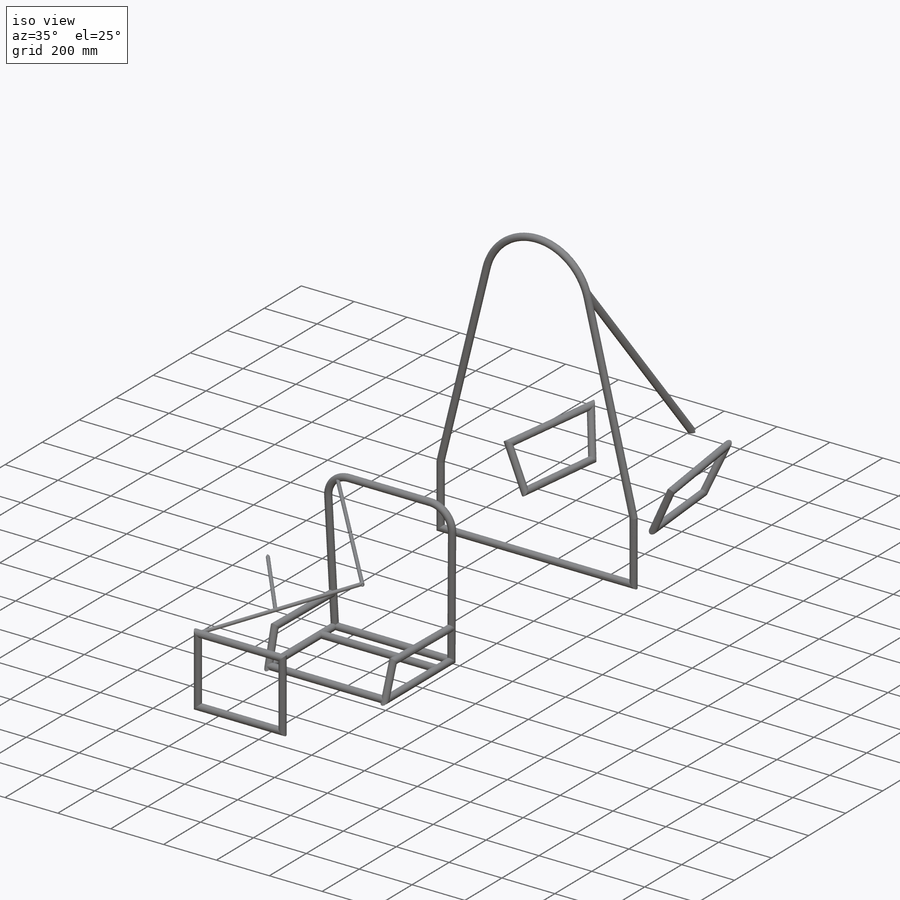
[diagram: iso view]
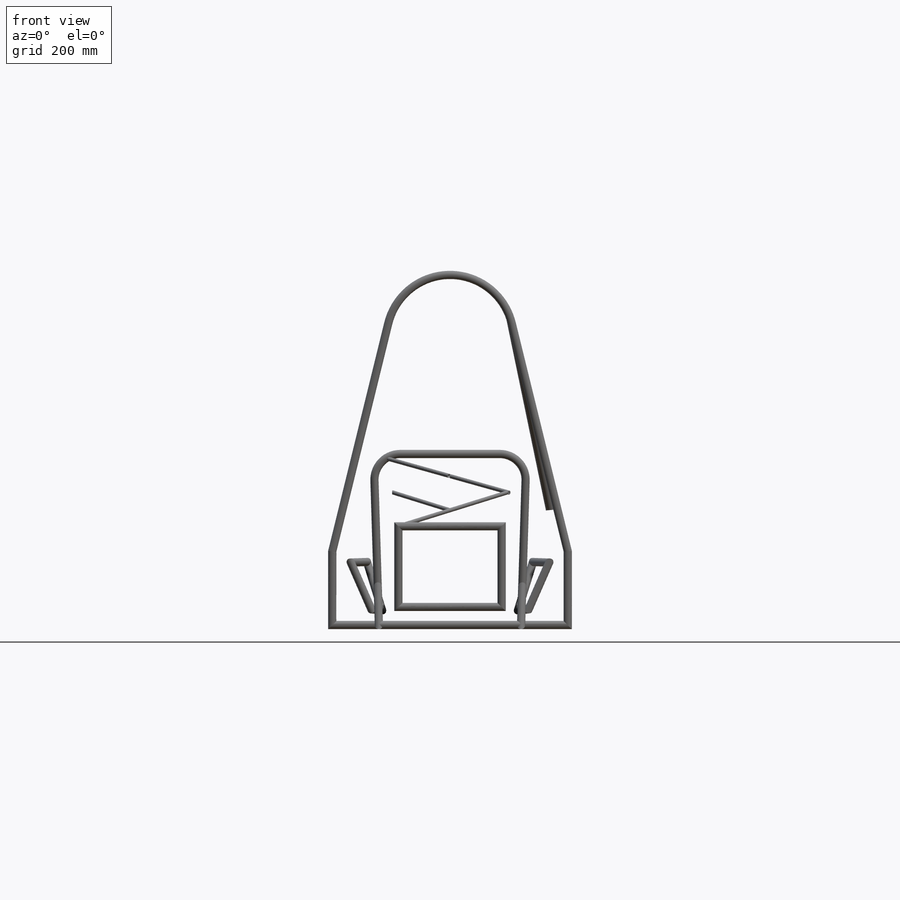
[diagram: front view]
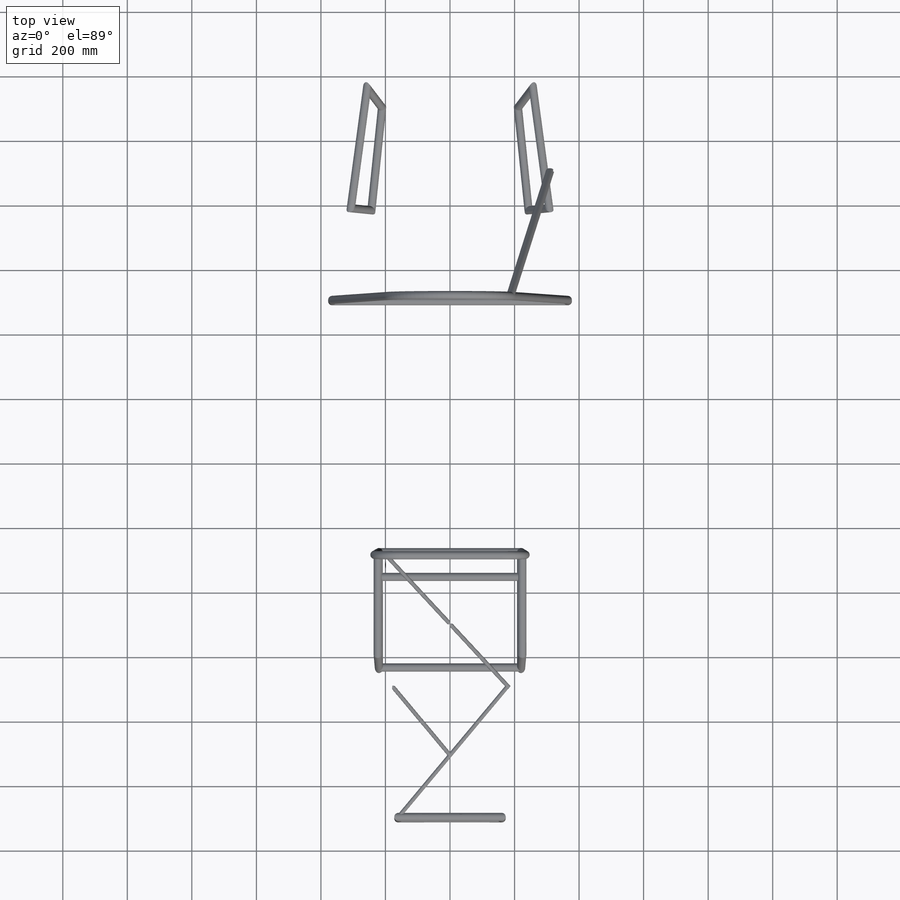
[diagram: top view]
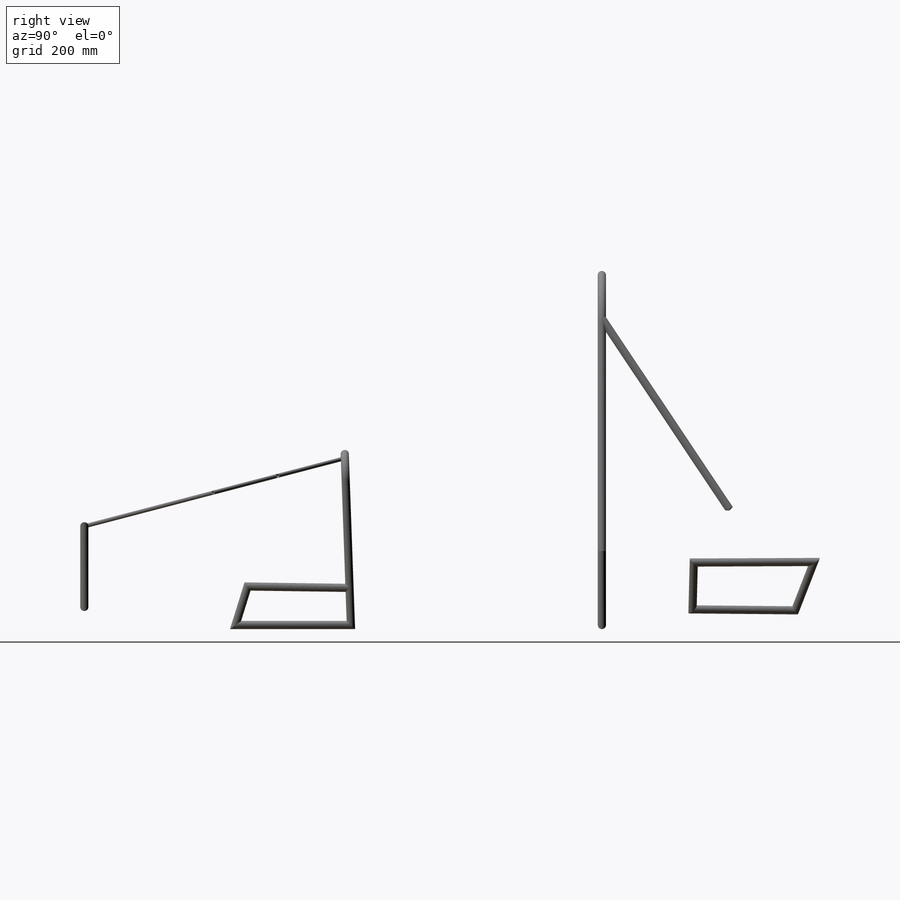
[diagram: right view]
SOLIDWORKS PART (.sldprt)
format: sldprt  version: not decoded by parser v0  size: 4,944,896 bytes
history: native  units: mm
features: sketch x56, plane x50, extrude x6, delete_body x2, material x1 + 115 further entries (+15 scaffold rows collapsed; 4 parser-record rows omitted)
feature tree (249):
  scaffold x15  (default folders/planes/origin — collapsed)
  material  "AISI 1020 Steel, Cold Rolled"
  "Cut-List-Item2"
  "Cut-List-Item3"
  "Cut-List-Item4"
  "Cut-List-Item5"
  "Cut-List-Item6"
  "Cut-List-Item7"
  "Cut-List-Item8"
  "Cut-List-Item9"
  "Cut-List-Item10"
  "Cut-List-Item11"
  "Cut-List-Item12"
  "Cut-List-Item13"
  "Cut-List-Item14"
  "Cut-List-Item15"
  "Cut-List-Item16"
  "Cut-List-Item17"
  "Cut-List-Item18"
  "Cut-List-Item27"
  "Cut-List-Item28"
  "Cut-List-Item29"
  "Cut-List-Item30"
  "Cut-List-Item32"
  "Cut-List-Item33"
  "Cut-List-Item34"
  "Cut-List-Item44"
  "Cut-List-Item45"
  "Cut-List-Item46"
  "Cut-List-Item47"
  "Cut-List-Item49"
  "Cut-List-Item50"
  "Cut-List-Item51"
  "Cut-List-Item52"
  "Cut-List-Item53"
  "Cut-List-Item54"
  "Cut-List-Item55"
  "Cut-List-Item56"
  "Cut-List-Item57"
  "Cut-List-Item61"
  "Cut-List-Item62"
  "Cut-List-Item63"
  "Cut-List-Item64"
  "Cut-List-Item65"
  "Cut-List-Item66"
  "Cut-List-Item67"
  "Cut-List-Item76"
  "Cut-List-Item77"
  "Cut-List-Item78"
  "Cut-List-Item79"
  "Cut-List-Item82"
  "Cut-List-Item83"
  "Cut-List-Item84"
  "Cut-List-Item85"
  "Cut-List-Item86"
  "Cut-List-Item87"
  "Cut-List-Item88"
  "Cut-List-Item93"
  "Cut-List-Item94"
  "Cut-List-Item95"
  "Cut-List-Item96"
  "Cut-List-Item97"
  "Cut-List-Item98"
  "Cut-List-Item99"
  "Cut-List-Item100"
  "Cut-List-Item101"
  "Cut-List-Item102"
  "Cut-List-Item103"
  "Cut-List-Item104"
  "Cut-List-Item105"
  "Cut-List-Item106"
  "Cut-List-Item107"
  "Cut-List-Item108"
  "Cut-List-Item109"
  "Cut-List-Item110"
  "Cut-List-Item111"
  "Cut-List-Item112"
  "Cut-List-Item113"
  "Cut-List-Item115"
  "Cut-List-Item116"
  "Cut-List-Item117"
  "Cut-List-Item118"
  "Cut-List-Item119"
  "Cut-List-Item120"
  "Cut-List-Item121"
  "Cut-List-Item122"
  "Cut-List-Item123"
  "Cut-List-Item124"
  "Cut-List-Item125"
  "Cut-List-Item126"
  "Cut-List-Item127"
  "Cut-List-Item128"
  "Cut-List-Item129"
  "Cut-List-Item130"
  "Cut-List-Item131"
  "Cut-List-Item132"
  "Cut-List-Item133"
  "Cut-List-Item134"
  "Cut-List-Item135"
  "Cut-List-Item136"
  "Cut-List-Item137"
  "Cut-List-Item138"
  "Cut-List-Item139"
  "Cut-List-Item140"
  "Cut-List-Item141"
  "Cut-List-Item142"
  "Cut-List-Item143"
  "Cut-List-Item144"
  "Cut-List-Item145"
  "Cut-List-Item146"
  "Cut-List-Item147"
  "Cut-List-Item148"
  "Cut-List-Item149"
  "Cut-List-Item150"
  "Cut-List-Item151"
  "Cut-List-Item152"
  "Cut-List-Item153"
  parser-record x4  (decoder bookkeeping rows leaked as tree rows — omitted from the tree; the rows remain in map.json)
  sketch  "3DSketch1"  dims[c1.D1=76.74mm c1.D2=76.74mm c1.D3=~187.424234mm c2.D3=~89.004934mm c3.D3=~425.875339mm c4.D3=~216.113546mm c5.D3=~21.998395mm c6.D3=~76.515356mm]
  sketch  "Rearsusp"  dims[c1.D2=~78.005075mm c1.D1=~170.002125mm c2.D2=~297.06686mm c2.D1=~170.002125mm c3.D1=~42.153653mm c4.D1=~170.002125mm c5.D1=~214.916011mm c6.D1=~359.316529mm c7.D1=196.7572mm c8.D1=~359.316529mm c9.D1=~215.115026mm c10.D1=~359.316529mm c11.D1=~359.316529mm c12.D1=~242.057727mm c13.D1=~21.998032mm c14.D1=~175.009897mm c15.D1=~212.067348mm c16.D1=~241.99812mm c17.D1=~125.467797mm c18.D1=~180.09538mm c19.D1=~82.897196mm c20.D1=~220.476808mm c21.D1=~220.476808mm c22.D1=~125.467797mm c23.D1=~212.067348mm c24.D1=~220.476808mm c25.D1=~234.216587mm c26.D1=~125.467797mm c27.D1=~125.467797mm c28.D1=~528.635616mm c29.D1=569.78mm c30.D1=~115.860847mm c31.D1=569.78mm c32.D1=~88.682088mm c33.D1=588.82mm c34.D1=~76.994302mm c35.D1=~86.053754mm c36.D1=~51.409151mm c37.D1=~64.996248mm c38.D1=~162.174501mm c39.D1=~64.996248mm c40.D1=~51.409151mm c41.D1=~86.053754mm c42.D1=~76.994302mm c43.D1=~341.67819mm c44.D1=~353.821378mm c45.D1=~341.67819mm c46.D1=28.0mm c46.D2=~170.002125mm c46.D3=170.0mm c47.D2=~170.002125mm]
  sketch  "Shockpullarb"  dims[c1.D1=~54.638431mm c2.D1=~65.003388mm c3.D1=~85.002478mm c4.D1=~85.002478mm c5.D1=~65.003388mm c6.D1=~54.638431mm]
  plane  "MRH"  Offset=704mm
  plane  "Plane30"
  plane  "FRH"
  plane  "ButtPoint"  Offset=414mm
  plane  "Pedalbox"  Offset=920mm
  plane  "Bulkhead"  Offset=1604mm
  plane  "Refrance"  Offset=615.35mm
  sketch  "Bulkhead sketch"  dims[c1.D1=160.0mm c1.D2=320.0mm c1.D3=~41.130045mm c1.D4=250.0mm c1.D5=~208.869955mm c2.D4=~82.26009mm c2.D3=250.0mm c2.D1=250.0mm c3.D1=90.0deg c4.D1=143.45mm]
  sketch  "FRHSketch"  dims[c1.D3=78.0mm c1.D2=80.0mm c1.D1=620.36mm c2.D2=~478.308036mm]
  sketch  "MRHSketch"  dims[c1.D5=400.0mm c1.D1=670.0mm c1.D2=300.0mm c1.D3=730.0mm c1.D4=638.21mm c2.D5=~276.315096mm c2.D2=340.0mm c2.D1=700.0mm c2.D3=1050.0mm c3.D2=~228.105907mm c3.D1=1017.0mm c3.D4=730.0mm c4.D1=160.0mm c4.D3=1085.0mm c5.D1=150.0mm]
  sketch  "AllTriangulation"  dims[c1.D3=9.525mm c1.D1=~416.695351mm c1.D4=420.0mm c1.D2=75.0mm c2.D3=~172.968891mm c2.D1=~522.235788mm c3.D3=~522.235788mm c3.D1=135.0mm c4.D3=~378.607417mm]
  sketch  "RearArm"
  sketch  "Enginecircle"  dims[D1=412.7mm]
  sketch  "3DSketch11"
  sketch  "3DSketch12"
  sketch  "3DSketch13"
  sketch  "3DSketch14"  dims[c1.D1=~398.753574mm c2.D1=~89.004934mm c3.D1=~187.424234mm c4.D1=~216.113546mm c5.D1=~332.12721mm c6.D1=~379.099949mm c7.D1=~325.829051mm c8.D1=~169.999474mm c9.D1=~82.651099mm c10.D1=~360.570476mm c11.D1=~21.998395mm c12.D1=28.223mm c13.D1=~454.449071mm c14.D1=~212.067348mm c15.D1=~261.298566mm c16.D1=~335.831426mm c17.D1=~313.101481mm c18.D1=~301.799354mm c19.D1=~451.859072mm c20.D1=~313.101481mm c21.D1=~454.449071mm c22.D1=~355.666698mm c23.D1=~451.859072mm c24.D1=~261.298566mm c25.D1=~202.446902mm c26.D1=~151.261915mm c27.D1=~22.027065mm c28.D1=~257.585119mm]
  sketch  "REARHOOPSK"
  sketch  "JACKINGBAR"  dims[c1.D1=~701.508519mm c1.D2=~82.694209mm c1.D3=~47.305791mm c1.D4=~47.305791mm c2.D1=430.0mm c2.D3=400.0mm c2.D2=~82.694209mm c3.D3=50.0mm c3.D4=50.0mm c3.D2=40.0mm c3.D1=400.0mm c4.D3=50.0mm c4.D4=50.0mm c4.D1=40.0mm]
  sketch  "Shoulderharness"  dims[D1=~46.785005mm]
  sketch  "Engine Mounts"
  plane  "Plane1"
  sketch  "Sketch21"  dims[D1=25.4mm D2=1.65mm Structural Member2=0.0deg]
  plane  "Plane5"
  sketch  "Sketch11"  dims[D1=25.4mm D2=2.5mm Structural Member3=0.0deg]
  plane  "Plane7"
  sketch  "Sketch12"  dims[D1=25.4mm D2=2.5mm Structural Member7=0.0deg]
  plane  "Plane12"
  sketch  "Sketch15"  dims[D1=25.4mm D2=2.5mm Structural Member8=0.0deg]
  plane  "Plane13"
  sketch  "Sketch26"  dims[D1=25.4mm D2=1.65mm Structural Member9=0.0deg]
  plane  "Plane16"
  sketch  "Sketch29"  dims[D1=25.4mm D2=1.65mm Structural Member14=0.0deg]
  plane  "Plane21"
  sketch  "Sketch214"  dims[D1=25.4mm D2=1.65mm Structural Member16=0.0deg]
  plane  "Plane24"
  sketch  "Sketch218"  dims[D1=25.4mm D2=1.65mm Structural Member17=0.0deg]
  plane  "Plane25"
  sketch  "Sketch219"  dims[D1=25.4mm D2=1.65mm Structural Member18=0.0deg]
  plane  "Plane26"
  sketch  "Sketch220"  dims[D1=25.4mm D2=1.65mm Structural Member20=0.0deg]
  plane  "Plane28"
  sketch  "Sketch223"  dims[D1=25.4mm D2=1.65mm Structural Member21=0.0deg]
  plane  "Plane29"
  sketch  "Sketch1"  dims[D1=25.4mm D2=2.5mm Structural Member22=0.0deg]
  plane  "Plane31"
  sketch  "Sketch2"  dims[D1=25.4mm D2=1.65mm Structural Member23=0.0deg]
  plane  "Plane32"
  sketch  "Sketch16"  dims[D1=25.4mm D2=2.5mm Structural Member26=0.0deg]
  plane  "Plane36"
  sketch  "Sketch229"  dims[D1=25.4mm D2=1.65mm Structural Member27=0.0deg]
  plane  "Plane37"
  sketch  "Sketch231"  dims[D1=25.4mm D2=1.65mm Structural Member28=0.0deg]
  plane  "Plane38"
  sketch  "Sketch232"  dims[D1=25.4mm D2=1.65mm Structural Member29=0.0deg]
  plane  "Plane39"
  sketch  "Sketch233"  dims[D1=25.4mm D2=1.65mm Structural Member31=0.0deg]
  plane  "Plane44"
  sketch  "Sketch235"  dims[D1=25.4mm D2=1.65mm Structural Member32=0.0deg]
  plane  "Plane46"
  sketch  "Sketch237"  dims[D1=25.4mm D2=1.65mm Structural Member33=0.0deg]
  plane  "Plane47"
  sketch  "Sketch238"  dims[D1=25.4mm D2=1.65mm Structural Member34=0.0deg]
  plane  "Plane48"
  sketch  "Sketch239"  dims[D1=25.4mm D2=1.65mm Structural Member35=0.0deg]
  plane  "Plane52"
  sketch  "Sketch18"  dims[D1=12.7mm D2=6.25mm Structural Member36=0.0deg]
  plane  "Plane53"
  sketch  "Sketch19"  dims[D1=25.4mm D2=2.5mm Structural Member37=0.0deg]
  plane  "Plane56"
  sketch  "Sketch112"  dims[D1=25.4mm D2=2.5mm Structural Member38=0.0deg]
  plane  "Plane57"
  sketch  "Sketch113"  dims[D1=25.4mm D2=2.5mm Structural Member39=0.0deg]
  plane  "Plane58"
  sketch  "Sketch114"  dims[D1=25.4mm D2=2.5mm Structural Member41=0.0deg]
  plane  "Plane60"
  sketch  "Sketch115"  dims[D1=25.4mm D2=2.5mm Structural Member42=0.0deg]
  plane  "Plane62"
  sketch  "Sketch116"  dims[D1=25.4mm D2=2.5mm]
  plane  "Plane40"
  plane  "Plane49"
  plane  "Plane50"
  plane  "Plane51"
  plane  "Enginemntsketch"
  sketch  "Sketch242"  dims[D1=10.0mm D2=25.4mm]
  extrude  "Boss-Extrude1"  Depth=50.8mm
  plane  "Plane64"
  sketch  "Sketch243"  dims[D1=10.0mm D2=25.4mm]
  extrude  "Enginemntsk2"  Depth=50.8mm
  plane  "Plane66"
  sketch  "Sketch246"  dims[D1=25.4mm D2=10.0mm]
  plane  "Plane67"
  sketch  "Sketch247"  dims[D1=25.4mm D2=10.0mm]
  extrude  "Boss-Extrude4"  [1 undecoded]
  extrude  "Boss-Extrude5"  [1 undecoded]
  plane  "Plane68"
  sketch  "Sketch249"  dims[D1=25.4mm D2=10.0mm]
  extrude  "Boss-Extrude6"  Depth=50.8mm
  plane  "Plane69"
  sketch  "Sketch250"  dims[D1=10.0mm D2=25.4mm]
  extrude  "Boss-Extrude7"  Depth=50.8mm Structural Member43=0deg
  plane  "Plane70"
  sketch  "Sketch117"  dims[D1=25.4mm D2=2.5mm Structural Member44=0.0deg]
  plane  "Plane71"
  sketch  "Sketch3"  dims[D1=25.4mm D2=1.25mm Structural Member45=0.0deg]
  plane  "Plane72"
  sketch  "Sketch31"  dims[D1=25.4mm D2=1.25mm]
  delete_body  "Body-Delete1"
  delete_body  "Body-Delete2"  Structural Member46=0deg
  plane  "Plane73"
  sketch  "Sketch32"  dims[D1=25.4mm D2=1.25mm]
decode coverage: 55 of 64 modeling features carry decoded parameters; 115 rows unclassified (native names shown)
note: ~ marks probable driven/reference dimensions
note: 2 parameter values undecoded
note: suppression state not decoded; provenance and decode notes live in map.json
